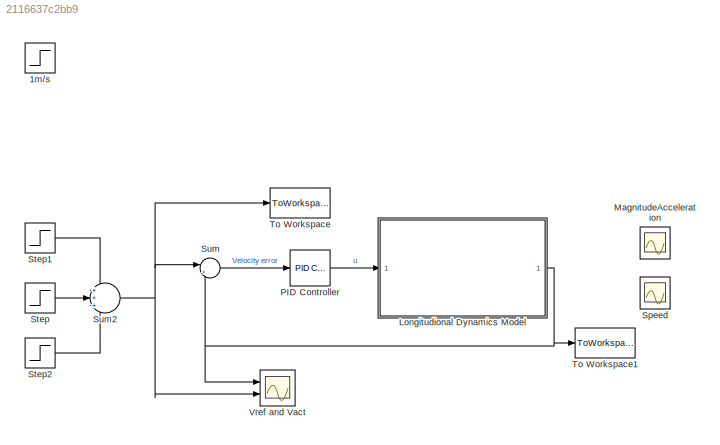
MODEL slx_2116637c2bb9
KIND model
CONFIG AbsTol = auto
CONFIG EnableMultiTasking = off
CONFIG FixedStep = 0.1
CONFIG MaxStep = auto
CONFIG MinStep = auto
CONFIG RelTol = 1e-3
CONFIG SampleTimeConstraint = Unconstrained
CONFIG Solver = FixedStepAuto
CONFIG SolverName = FixedStepAuto
CONFIG StartTime = 0.0
CONFIG StopTime = 100
BLOCK [Step] 1m//s
  SampleTime = 0
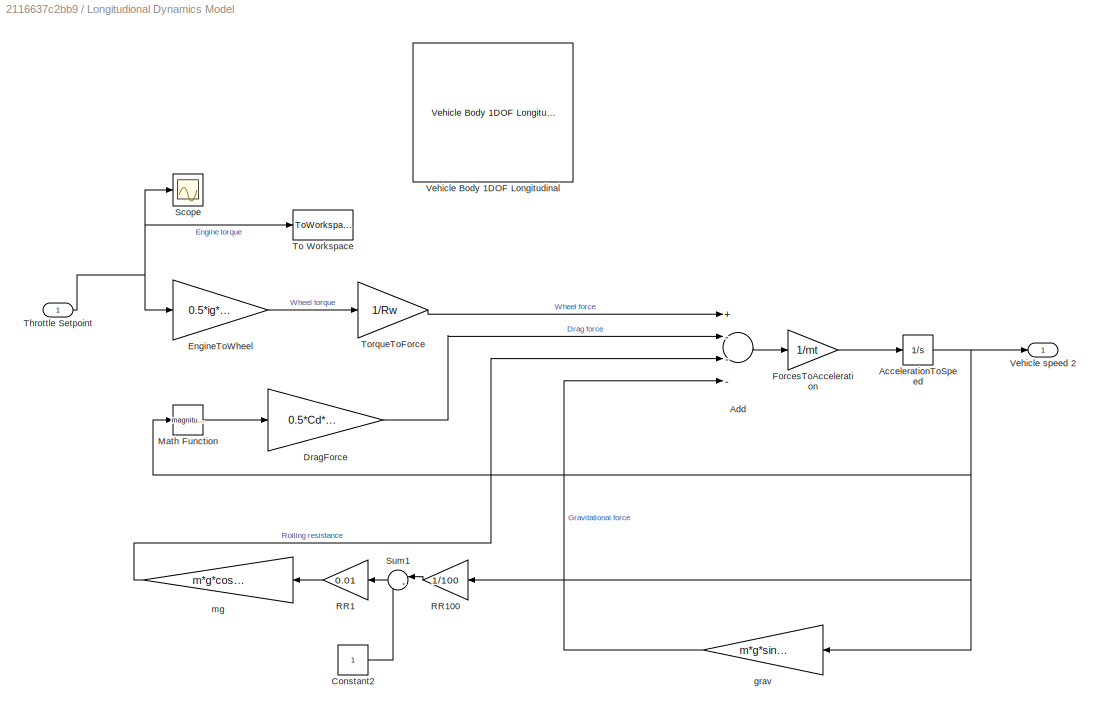
BLOCK [SubSystem] Longitudional Dynamics Model
  Ports = [1, 1]
  RequestExecContextInheritance = off
BLOCK [Integrator] Longitudional Dynamics Model/AccelerationToSpeed
  Ports = [1, 1]
BLOCK [Sum] Longitudional Dynamics Model/Add
  InputSameDT = off
  Inputs = +---
  OutDataTypeStr = Inherit: Inherit via internal rule
  Ports = [4, 1]
  SaturateOnIntegerOverflow = off
BLOCK [Constant] Longitudional Dynamics Model/Constant2
BLOCK [Gain] Longitudional Dynamics Model/DragForce
  Gain = 0.5*Cd*A*Rho
  OutDataTypeStr = Inherit: Inherit via internal rule
  ParamDataTypeStr = Inherit: Inherit via internal rule
  SaturateOnIntegerOverflow = off
BLOCK [Gain] Longitudional Dynamics Model/EngineToWheel
  Gain = 0.5*ig*id
  OutDataTypeStr = Inherit: Inherit via internal rule
  ParamDataTypeStr = Inherit: Inherit via internal rule
  SaturateOnIntegerOverflow = off
BLOCK [Gain] Longitudional Dynamics Model/ForcesToAcceleration
  Gain = 1/mt
  OutDataTypeStr = Inherit: Inherit via internal rule
  ParamDataTypeStr = Inherit: Inherit via internal rule
  SaturateOnIntegerOverflow = off
BLOCK [Math] Longitudional Dynamics Model/Math Function
  Operator = magnitude^2
  Ports = [1, 1]
BLOCK [Gain] Longitudional Dynamics Model/RR1
  Gain = 0.01
  OutDataTypeStr = Inherit: Inherit via internal rule
  ParamDataTypeStr = Inherit: Inherit via internal rule
  SaturateOnIntegerOverflow = off
BLOCK [Gain] Longitudional Dynamics Model/RR100
  Gain = 1/100
  OutDataTypeStr = Inherit: Inherit via internal rule
  ParamDataTypeStr = Inherit: Inherit via internal rule
  SaturateOnIntegerOverflow = off
BLOCK [Scope] Longitudional Dynamics Model/Scope
  Floating = off
  NumInputPorts = 1
  Ports = [1]
  ScopeSpecificationString = Simulink.scopes.TimeScopeBlockCfg('CurrentConfiguration', extmgr.ConfigurationSet(extmgr.Configuration('Core','General UI',true),extmgr.Configuration('Core','Source UI',true),extmgr.Configuration('Sources','WiredSimulink',true,'DataLoggingVariableName','ScopeData1'),extmgr.Configuration('Visuals','Time Domain',true,'SerializedDisplays',{struct('MinYLimReal','-538.8485','MaxYLimReal','951.03937','Y...<+1384ch>
BLOCK [Sum] Longitudional Dynamics Model/Sum1
  IconShape = round
  InputSameDT = off
  Inputs = |++
  OutDataTypeStr = Inherit: Inherit via internal rule
  Ports = [2, 1]
  SaturateOnIntegerOverflow = off
BLOCK [Inport] Longitudional Dynamics Model/Throttle Setpoint
  IconDisplay = Port number
BLOCK [ToWorkspace] Longitudional Dynamics Model/To Workspace
  FixptAsFi = on
  MaxDataPoints = inf
  Ports = [1]
  SampleTime = -1
  Save2DSignal = 3-D array (concatenate along third dimension)
  SaveFormat = Timeseries
  VariableName = T_e
BLOCK [Gain] Longitudional Dynamics Model/TorqueToForce
  Gain = 1/Rw
  OutDataTypeStr = Inherit: Inherit via internal rule
  ParamDataTypeStr = Inherit: Inherit via internal rule
  SaturateOnIntegerOverflow = off
BLOCK [Reference] Longitudional Dynamics Model/Vehicle Body 1DOF Longitudinal  REF=autolibshared/Vehicle Body 1DOF Longitudinal
  Commented = on
  Ports = [4, 4]
  SourceBlock = autolibshared/Vehicle Body 1DOF Longitudinal
  SourceProductBaseCode = PW
  SourceProductName = Powertrain Blockset
  SourceType = Vehicle Body 1DOF Longitudinal
BLOCK [Outport] Longitudional Dynamics Model/Vehicle speed 2
  IconDisplay = Port number
BLOCK [Gain] Longitudional Dynamics Model/grav
  Gain = m*g*sin(Theta)
  OutDataTypeStr = Inherit: Inherit via internal rule
  ParamDataTypeStr = Inherit: Inherit via internal rule
  SaturateOnIntegerOverflow = off
BLOCK [Gain] Longitudional Dynamics Model/mg
  Gain = m*g*cos(Theta)
  OutDataTypeStr = Inherit: Inherit via internal rule
  ParamDataTypeStr = Inherit: Inherit via internal rule
  SaturateOnIntegerOverflow = off
BLOCK [Scope] MagnitudeAcceleration
  Floating = off
  NumInputPorts = 1
  Ports = [1]
  ScopeSpecificationString = Simulink.scopes.TimeScopeBlockCfg('CurrentConfiguration', extmgr.ConfigurationSet(extmgr.Configuration('Core','General UI',true),extmgr.Configuration('Core','Source UI',true),extmgr.Configuration('Sources','WiredSimulink',true,'DataLoggingVariableName','ScopeData2'),extmgr.Configuration('Visuals','Time Domain',true,'SerializedDisplays',{struct('MinYLimReal','-0.01465','MaxYLimReal','0.10724','YLab...<+1418ch>
BLOCK [Reference] PID Controller  REF=simulink/Continuous/PID Controller
  Ports = [1, 1]
  SourceBlock = simulink/Continuous/PID Controller
  SourceProductBaseCode = SL
  SourceProductName = Simulink
  SourceType = PID 1dof
BLOCK [Scope] Speed
  Floating = off
  NumInputPorts = 1
  Ports = [1]
  ScopeSpecificationString = Simulink.scopes.TimeScopeBlockCfg('CurrentConfiguration', extmgr.ConfigurationSet(extmgr.Configuration('Core','General UI',true),extmgr.Configuration('Core','Source UI',true),extmgr.Configuration('Sources','WiredSimulink',true),extmgr.Configuration('Visuals','Time Domain',true,'SerializedDisplays',{struct('MinYLimReal','-0.13328','MaxYLimReal','1.19955','YLabelReal','','MinYLimMag','0.00000','MaxY...<+1379ch>
BLOCK [Step] Step
  After = 10
  SampleTime = 0
  Time = 0
BLOCK [Step] Step1
  After = 20
  SampleTime = 0
  Time = 30
BLOCK [Step] Step2
  After = -10
  SampleTime = 0
  Time = 60
BLOCK [Sum] Sum
  IconShape = round
  InputSameDT = off
  Inputs = |+-
  OutDataTypeStr = Inherit: Inherit via internal rule
  Ports = [2, 1]
  SaturateOnIntegerOverflow = off
BLOCK [Sum] Sum2
  IconShape = round
  InputSameDT = off
  Inputs = +++
  OutDataTypeStr = Inherit: Inherit via internal rule
  Ports = [3, 1]
  SaturateOnIntegerOverflow = off
BLOCK [ToWorkspace] To Workspace
  FixptAsFi = on
  MaxDataPoints = inf
  Ports = [1]
  SampleTime = -1
  Save2DSignal = 3-D array (concatenate along third dimension)
  SaveFormat = Timeseries
  VariableName = v_ref
BLOCK [ToWorkspace] To Workspace1
  FixptAsFi = on
  MaxDataPoints = inf
  Ports = [1]
  SampleTime = -1
  Save2DSignal = 3-D array (concatenate along third dimension)
  SaveFormat = Timeseries
  VariableName = v_act
BLOCK [Scope] Vref and Vact
  Floating = off
  NumInputPorts = 2
  Ports = [2]
  ScopeSpecificationString = Simulink.scopes.TimeScopeBlockCfg('CurrentConfiguration', extmgr.ConfigurationSet(extmgr.Configuration('Core','General UI',true),extmgr.Configuration('Core','Source UI',true),extmgr.Configuration('Sources','WiredSimulink',true,'DataLoggingVariableName','ScopeData5'),extmgr.Configuration('Visuals','Time Domain',true,'SerializedDisplays',{struct('MinYLimReal','-3.76767','MaxYLimReal','33.909','YLabe...<+1468ch>
NET Longitudional Dynamics Model/AccelerationToSpeed:1 -> Longitudional Dynamics Model/Math Function:1, Longitudional Dynamics Model/RR100:1, Longitudional Dynamics Model/Vehicle speed 2:1, Longitudional Dynamics Model/grav:1
LINE Longitudional Dynamics Model/Add:1 -> Longitudional Dynamics Model/ForcesToAcceleration:1
LINE Longitudional Dynamics Model/Constant2:1 -> Longitudional Dynamics Model/Sum1:2
LINE Longitudional Dynamics Model/DragForce:1 -> Longitudional Dynamics Model/Add:2
LINE Longitudional Dynamics Model/EngineToWheel:1 -> Longitudional Dynamics Model/TorqueToForce:1
LINE Longitudional Dynamics Model/ForcesToAcceleration:1 -> Longitudional Dynamics Model/AccelerationToSpeed:1
LINE Longitudional Dynamics Model/Math Function:1 -> Longitudional Dynamics Model/DragForce:1
LINE Longitudional Dynamics Model/RR100:1 -> Longitudional Dynamics Model/Sum1:1
LINE Longitudional Dynamics Model/RR1:1 -> Longitudional Dynamics Model/mg:1
LINE Longitudional Dynamics Model/Sum1:1 -> Longitudional Dynamics Model/RR1:1
NET Longitudional Dynamics Model/Throttle Setpoint:1 -> Longitudional Dynamics Model/EngineToWheel:1, Longitudional Dynamics Model/Scope:1, Longitudional Dynamics Model/To Workspace:1
LINE Longitudional Dynamics Model/TorqueToForce:1 -> Longitudional Dynamics Model/Add:1
LINE Longitudional Dynamics Model/grav:1 -> Longitudional Dynamics Model/Add:4
LINE Longitudional Dynamics Model/mg:1 -> Longitudional Dynamics Model/Add:3
NET Longitudional Dynamics Model:1 -> Sum:2, To Workspace1:1, Vref and Vact:1
LINE PID Controller:1 -> Longitudional Dynamics Model:1
LINE Step1:1 -> Sum2:1
LINE Step2:1 -> Sum2:3
LINE Step:1 -> Sum2:2
NET Sum2:1 -> Sum:1, To Workspace:1, Vref and Vact:2
LINE Sum:1 -> PID Controller:1
note: NET lines group one-source signal fan-out (src -> all destinations, sorted); 1:1 wires keep LINE
